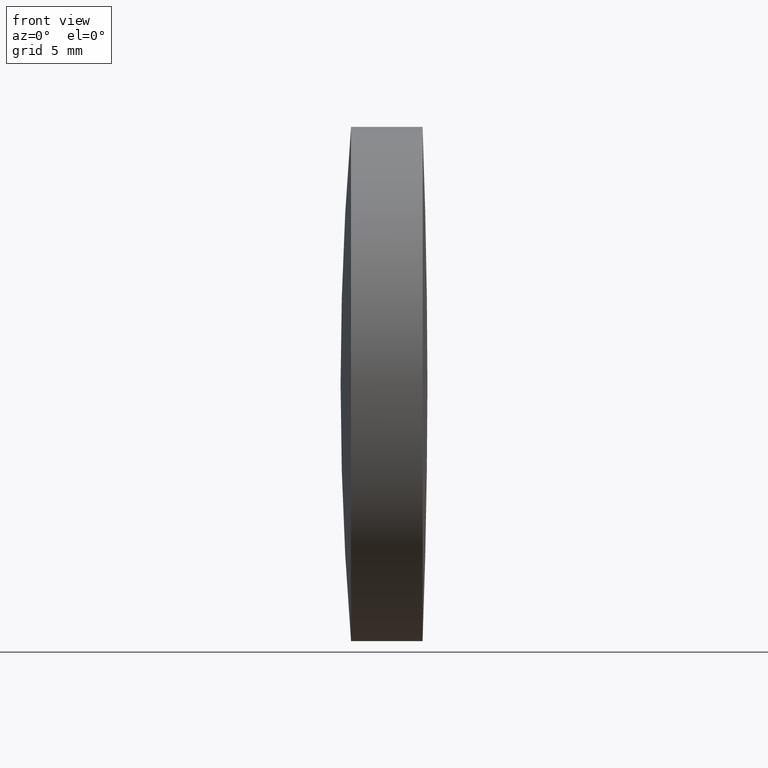
[diagram: clean part render]
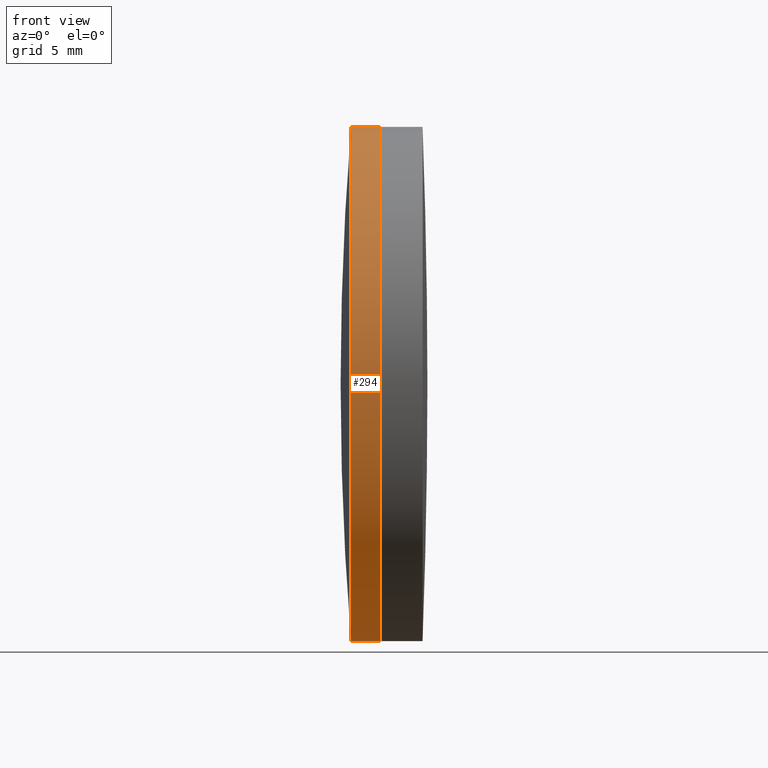
[diagram: same view with one face highlighted and labeled with its STEP entity id]
A machine part, front view. The second image highlights one B-rep face of the part: STEP entity #294.
In plain terms, the highlighted cylindrical surface (partial cylindrical patch) has radius 12.5 mm, axis along (-1, -0, -0).
Its self-contained STEP definition (entity closure, byte-faithful):
#2 = CARTESIAN_POINT ( 'NONE',  ( 115.4447867878546700, 1.530808498934191500E-015, -12.50000000000000000 ) ) ;
#4 = ORIENTED_EDGE ( 'NONE', *, *, #208, .F. ) ;
#7 = CARTESIAN_POINT ( 'NONE',  ( -9.702612178336682500, 1.530808498934191500E-015, -12.50000000000000000 ) ) ;
#37 = ORIENTED_EDGE ( 'NONE', *, *, #251, .T. ) ;
#40 = CARTESIAN_POINT ( 'NONE',  ( -9.702612178336682500, 0.0000000000000000000, 0.0000000000000000000 ) ) ;
#48 = DIRECTION ( 'NONE',  ( -1.000000000000000000, -0.0000000000000000000, -0.0000000000000000000 ) ) ;
#50 = DIRECTION ( 'NONE',  ( -1.000000000000000000, -0.0000000000000000000, -0.0000000000000000000 ) ) ;
#55 = ORIENTED_EDGE ( 'NONE', *, *, #131, .F. ) ;
#68 = VERTEX_POINT ( 'NONE', #2 ) ;
#76 = FACE_OUTER_BOUND ( 'NONE', #346, .T. ) ;
#118 = DIRECTION ( 'NONE',  ( 0.0000000000000000000, 0.0000000000000000000, 1.000000000000000000 ) ) ;
#120 = DIRECTION ( 'NONE',  ( -1.000000000000000000, -0.0000000000000000000, -0.0000000000000000000 ) ) ;
#123 = AXIS2_PLACEMENT_3D ( 'NONE', #40, #50, #118 ) ;
#131 = EDGE_CURVE ( 'NONE', #343, #228, #207, .T. ) ;
#147 = VECTOR ( 'NONE', #120, 1000.000000000000000 ) ;
#149 = EDGE_CURVE ( 'NONE', #231, #228, #162, .T. ) ;
#162 = LINE ( 'NONE', #304, #147 ) ;
#167 = DIRECTION ( 'NONE',  ( -1.000000000000000000, -0.0000000000000000000, -0.0000000000000000000 ) ) ;
#171 = DIRECTION ( 'NONE',  ( -1.000000000000000000, -0.0000000000000000000, -0.0000000000000000000 ) ) ;
#176 = DIRECTION ( 'NONE',  ( 0.0000000000000000000, 0.0000000000000000000, 1.000000000000000000 ) ) ;
#179 = ORIENTED_EDGE ( 'NONE', *, *, #149, .T. ) ;
#183 = CIRCLE ( 'NONE', #262, 12.50000000000000000 ) ;
#186 = CARTESIAN_POINT ( 'NONE',  ( 114.0173692960632100, 1.530808498934200400E-015, -12.50000000000007300 ) ) ;
#195 = LINE ( 'NONE', #7, #209 ) ;
#199 = CARTESIAN_POINT ( 'NONE',  ( 114.0173692960632100, 0.0000000000000000000, 0.0000000000000000000 ) ) ;
#207 = CIRCLE ( 'NONE', #293, 12.50000000000000000 ) ;
#208 = EDGE_CURVE ( 'NONE', #68, #343, #195, .T. ) ;
#209 = VECTOR ( 'NONE', #167, 1000.000000000000000 ) ;
#223 = DIRECTION ( 'NONE',  ( 0.0000000000000000000, 0.0000000000000000000, 1.000000000000000000 ) ) ;
#228 = VERTEX_POINT ( 'NONE', #269 ) ;
#231 = VERTEX_POINT ( 'NONE', #335 ) ;
#251 = EDGE_CURVE ( 'NONE', #68, #231, #183, .T. ) ;
#262 = AXIS2_PLACEMENT_3D ( 'NONE', #297, #171, #176 ) ;
#269 = CARTESIAN_POINT ( 'NONE',  ( 114.0173692960632100, 0.0000000000000000000, 12.50000000000007300 ) ) ;
#293 = AXIS2_PLACEMENT_3D ( 'NONE', #199, #48, #223 ) ;
#294 = ADVANCED_FACE ( 'NONE', ( #76 ), #328, .T. ) ;
#297 = CARTESIAN_POINT ( 'NONE',  ( 115.4447867878546700, 0.0000000000000000000, 0.0000000000000000000 ) ) ;
#304 = CARTESIAN_POINT ( 'NONE',  ( -9.702612178336682500, 0.0000000000000000000, 12.50000000000000000 ) ) ;
#328 = CYLINDRICAL_SURFACE ( 'NONE', #123, 12.50000000000000000 ) ;
#335 = CARTESIAN_POINT ( 'NONE',  ( 115.4447867878546700, 0.0000000000000000000, 12.50000000000000000 ) ) ;
#343 = VERTEX_POINT ( 'NONE', #186 ) ;
#346 = EDGE_LOOP ( 'NONE', ( #4, #37, #179, #55 ) ) ;